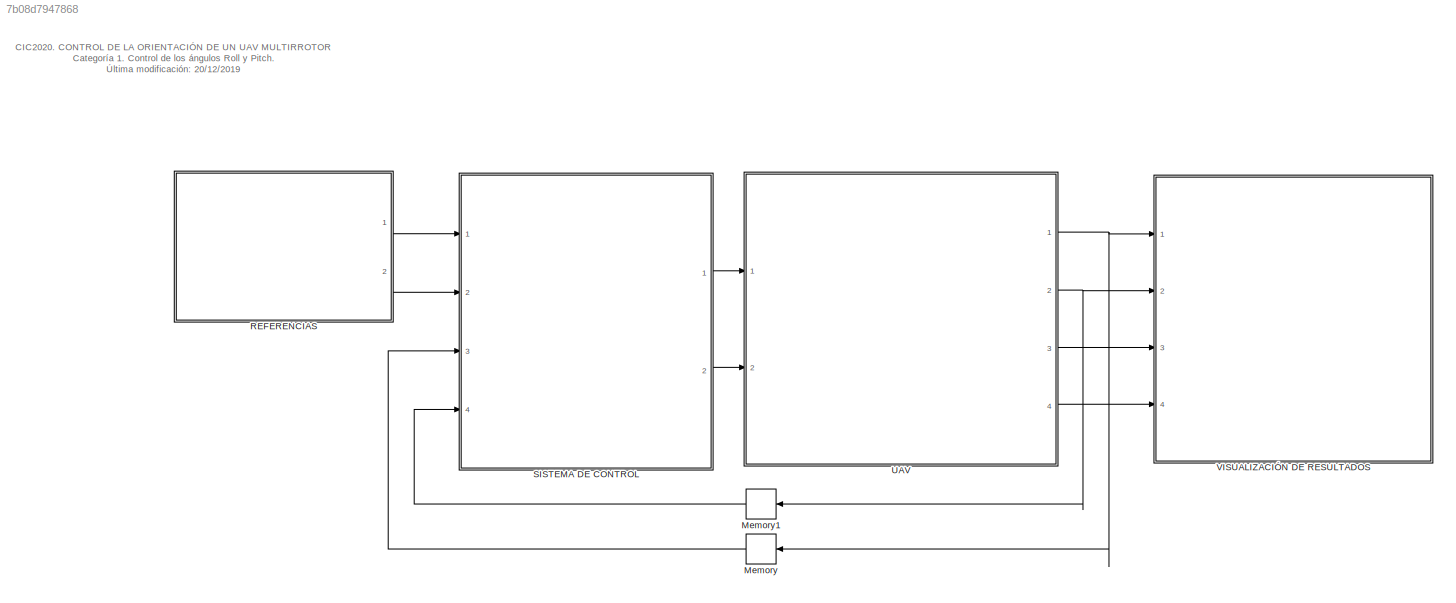
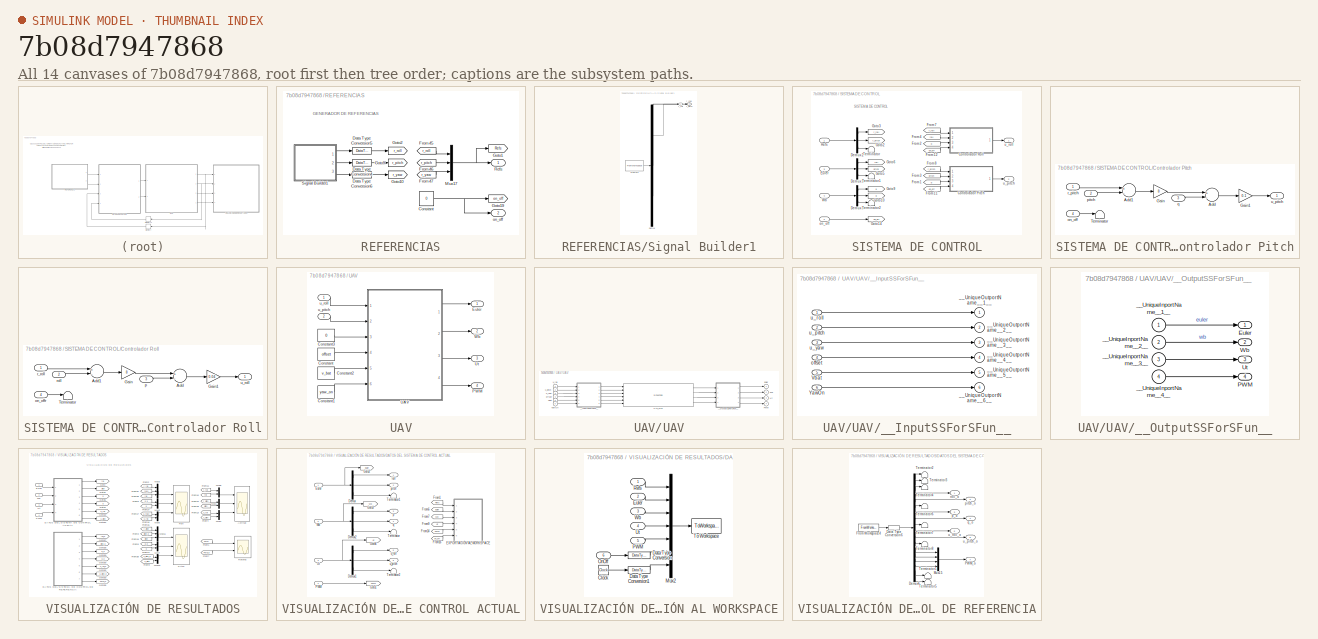
[diagram: thumbnail index - all 14 canvases of the model, root first then tree order]
MODEL slx_7b08d7947868
KIND model
CONFIG AbsTol = auto
CONFIG EnableMultiTasking = off
CONFIG FixedStep = Ts3
CONFIG InitFcn = Ts =0.0200;\nTs3= 0.0100;\nload DatosCrefC1;\n\n
CONFIG MaxStep = Ts3
CONFIG MinStep = auto
CONFIG RelTol = 1e-3
CONFIG SampleTimeConstraint = Unconstrained
CONFIG Solver = FixedStepAuto
CONFIG SolverName = FixedStepAuto
CONFIG StartTime = 0.0
CONFIG StopFcn = clear tf Ts Ts3 tout;
CONFIG StopTime = 45
BLOCK [Memory] Memory
BLOCK [Memory] Memory1
BLOCK [SubSystem] REFERENCIAS
  Ports = [0, 2]
  RequestExecContextInheritance = off
BLOCK [Constant] REFERENCIAS/Constant
  OutDataTypeStr = int16
  Value = 0
BLOCK [DataTypeConversion] REFERENCIAS/Data Type Conversion4
  OutDataTypeStr = single
  RndMeth = Floor
  SaturateOnIntegerOverflow = off
BLOCK [DataTypeConversion] REFERENCIAS/Data Type Conversion5
  OutDataTypeStr = single
  RndMeth = Floor
  SaturateOnIntegerOverflow = off
BLOCK [DataTypeConversion] REFERENCIAS/Data Type Conversion6
  OutDataTypeStr = single
  RndMeth = Floor
  SaturateOnIntegerOverflow = off
BLOCK [From] REFERENCIAS/From45
  GotoTag = r_roll
  TagVisibility = global
BLOCK [From] REFERENCIAS/From46
  GotoTag = r_pitch
  TagVisibility = global
BLOCK [From] REFERENCIAS/From47
  GotoTag = r_yaw
  TagVisibility = global
BLOCK [Goto] REFERENCIAS/Goto1
  GotoTag = Refs
  TagVisibility = global
BLOCK [Goto] REFERENCIAS/Goto10
  GotoTag = r_yaw
  TagVisibility = global
BLOCK [Goto] REFERENCIAS/Goto19
  GotoTag = on_off
  TagVisibility = global
BLOCK [Goto] REFERENCIAS/Goto2
  GotoTag = r_roll
  TagVisibility = global
BLOCK [Goto] REFERENCIAS/Goto9
  GotoTag = r_pitch
  TagVisibility = global
BLOCK [Mux] REFERENCIAS/Mux17
  DisplayOption = bar
  Inputs = 3
  Ports = [3, 1]
BLOCK [Outport] REFERENCIAS/Refs
  IconDisplay = Port number
BLOCK [SubSystem] REFERENCIAS/Signal Builder1
  ClipboardFcn = sigbuilder_block('clipboard');
  CloseFcn = sigbuilder_block('close');
  ContinueFcn = sigbuilder_block('continue');
  CopyFcn = sigbuilder_block('copy');
  DeleteFcn = sigbuilder_block('delete');
  LoadFcn = sigbuilder_block('load');
  MaskHideContents = on
  ModelCloseFcn = sigbuilder_block('modelClose');
  NameChangeFcn = sigbuilder_block('namechange');
  OpenFcn = sigbuilder_block('open',[5.4 5.4 1141.2 580.8 ]);
  PauseFcn = sigbuilder_block('pause');
  Ports = [0, 3]
  PreSaveFcn = sigbuilder_block('preSave');
  RequestExecContextInheritance = off
  StartFcn = sigbuilder_block('start');
  StopFcn = sigbuilder_block('stop');
  Tag = STV Subsys
BLOCK [Demux] REFERENCIAS/Signal Builder1/Demux
  Outputs = 3
  Ports = [1, 3]
  Tag = STV Demux
BLOCK [FromWorkspace] REFERENCIAS/Signal Builder1/FromWs
  SampleTime = 0
  Tag = STV FromWs
  VariableName = tuvar
  ZeroCross = on
BLOCK [Outport] REFERENCIAS/Signal Builder1/r_pitch
  IconDisplay = Port number
  Port = 2
  Tag = STV Outport
BLOCK [Outport] REFERENCIAS/Signal Builder1/r_roll
  IconDisplay = Port number
  Tag = STV Outport
BLOCK [Outport] REFERENCIAS/Signal Builder1/r_yaw
  IconDisplay = Port number
  Port = 3
  Tag = STV Outport
BLOCK [Outport] REFERENCIAS/on_off
  IconDisplay = Port number
  Port = 2
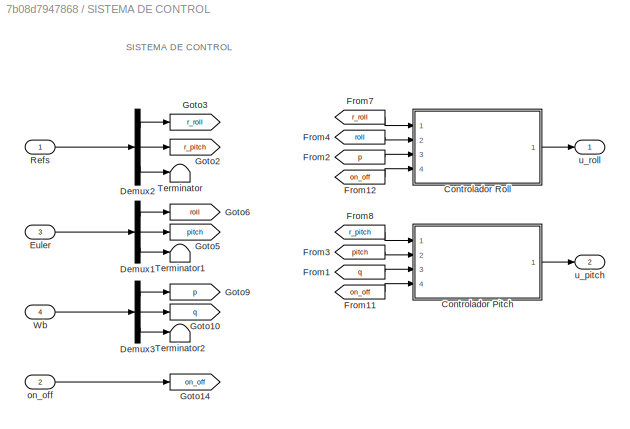
BLOCK [SubSystem] SISTEMA DE CONTROL
  Ports = [4, 2]
  RequestExecContextInheritance = off
BLOCK [SubSystem] SISTEMA DE CONTROL/Controlador Pitch
  Ports = [4, 1]
  RequestExecContextInheritance = off
BLOCK [Sum] SISTEMA DE CONTROL/Controlador Pitch/Add
  InputSameDT = off
  Inputs = +-
  OutDataTypeStr = Inherit: Inherit via internal rule
  Ports = [2, 1]
  SaturateOnIntegerOverflow = off
BLOCK [Sum] SISTEMA DE CONTROL/Controlador Pitch/Add1
  InputSameDT = off
  Inputs = +-
  OutDataTypeStr = Inherit: Inherit via internal rule
  Ports = [2, 1]
  SaturateOnIntegerOverflow = off
BLOCK [Gain] SISTEMA DE CONTROL/Controlador Pitch/Gain
  Gain = 8
  OutDataTypeStr = Inherit: Inherit via internal rule
  ParamDataTypeStr = Inherit: Inherit via internal rule
  SaturateOnIntegerOverflow = off
BLOCK [Gain] SISTEMA DE CONTROL/Controlador Pitch/Gain1
  Gain = 0.1
  OutDataTypeStr = Inherit: Inherit via internal rule
  ParamDataTypeStr = Inherit: Inherit via internal rule
  SaturateOnIntegerOverflow = off
BLOCK [Terminator] SISTEMA DE CONTROL/Controlador Pitch/Terminator
BLOCK [Inport] SISTEMA DE CONTROL/Controlador Pitch/on_off
  IconDisplay = Port number
  Port = 4
BLOCK [Inport] SISTEMA DE CONTROL/Controlador Pitch/pitch
  IconDisplay = Port number
  Port = 2
BLOCK [Inport] SISTEMA DE CONTROL/Controlador Pitch/q
  IconDisplay = Port number
  Port = 3
BLOCK [Inport] SISTEMA DE CONTROL/Controlador Pitch/r_pitch
  IconDisplay = Port number
BLOCK [Outport] SISTEMA DE CONTROL/Controlador Pitch/u_pitch
  IconDisplay = Port number
BLOCK [SubSystem] SISTEMA DE CONTROL/Controlador Roll
  Ports = [4, 1]
  RequestExecContextInheritance = off
BLOCK [Sum] SISTEMA DE CONTROL/Controlador Roll/Add
  InputSameDT = off
  Inputs = +-
  OutDataTypeStr = Inherit: Inherit via internal rule
  Ports = [2, 1]
  SaturateOnIntegerOverflow = off
BLOCK [Sum] SISTEMA DE CONTROL/Controlador Roll/Add1
  InputSameDT = off
  Inputs = +-
  OutDataTypeStr = Inherit: Inherit via internal rule
  Ports = [2, 1]
  SaturateOnIntegerOverflow = off
BLOCK [Gain] SISTEMA DE CONTROL/Controlador Roll/Gain
  Gain = 8
  OutDataTypeStr = Inherit: Inherit via internal rule
  ParamDataTypeStr = Inherit: Inherit via internal rule
  SaturateOnIntegerOverflow = off
BLOCK [Gain] SISTEMA DE CONTROL/Controlador Roll/Gain1
  Gain = 0.04
  OutDataTypeStr = Inherit: Inherit via internal rule
  ParamDataTypeStr = Inherit: Inherit via internal rule
  SaturateOnIntegerOverflow = off
BLOCK [Terminator] SISTEMA DE CONTROL/Controlador Roll/Terminator
BLOCK [Inport] SISTEMA DE CONTROL/Controlador Roll/on_offr
  IconDisplay = Port number
  Port = 4
BLOCK [Inport] SISTEMA DE CONTROL/Controlador Roll/p
  IconDisplay = Port number
  Port = 3
BLOCK [Inport] SISTEMA DE CONTROL/Controlador Roll/r_roll
  IconDisplay = Port number
BLOCK [Inport] SISTEMA DE CONTROL/Controlador Roll/roll
  IconDisplay = Port number
  Port = 2
BLOCK [Outport] SISTEMA DE CONTROL/Controlador Roll/u_roll
  IconDisplay = Port number
BLOCK [Demux] SISTEMA DE CONTROL/Demux1
  DisplayOption = bar
  Outputs = 3
  Ports = [1, 3]
BLOCK [Demux] SISTEMA DE CONTROL/Demux2
  DisplayOption = bar
  Outputs = 3
  Ports = [1, 3]
BLOCK [Demux] SISTEMA DE CONTROL/Demux3
  DisplayOption = bar
  Outputs = 3
  Ports = [1, 3]
BLOCK [Inport] SISTEMA DE CONTROL/Euler
  IconDisplay = Port number
  Port = 3
BLOCK [From] SISTEMA DE CONTROL/From1
  GotoTag = q
BLOCK [From] SISTEMA DE CONTROL/From11
  GotoTag = on_off
BLOCK [From] SISTEMA DE CONTROL/From12
  GotoTag = on_off
BLOCK [From] SISTEMA DE CONTROL/From2
  GotoTag = p
BLOCK [From] SISTEMA DE CONTROL/From3
  GotoTag = pitch
BLOCK [From] SISTEMA DE CONTROL/From4
  GotoTag = roll
BLOCK [From] SISTEMA DE CONTROL/From7
  GotoTag = r_roll
BLOCK [From] SISTEMA DE CONTROL/From8
  GotoTag = r_pitch
BLOCK [Goto] SISTEMA DE CONTROL/Goto10
  GotoTag = q
BLOCK [Goto] SISTEMA DE CONTROL/Goto14
  GotoTag = on_off
BLOCK [Goto] SISTEMA DE CONTROL/Goto2
  GotoTag = r_pitch
BLOCK [Goto] SISTEMA DE CONTROL/Goto3
  GotoTag = r_roll
BLOCK [Goto] SISTEMA DE CONTROL/Goto5
  GotoTag = pitch
BLOCK [Goto] SISTEMA DE CONTROL/Goto6
  GotoTag = roll
BLOCK [Goto] SISTEMA DE CONTROL/Goto9
  GotoTag = p
BLOCK [Inport] SISTEMA DE CONTROL/Refs
  IconDisplay = Port number
BLOCK [Terminator] SISTEMA DE CONTROL/Terminator
BLOCK [Terminator] SISTEMA DE CONTROL/Terminator1
BLOCK [Terminator] SISTEMA DE CONTROL/Terminator2
BLOCK [Inport] SISTEMA DE CONTROL/Wb
  IconDisplay = Port number
  Port = 4
BLOCK [Inport] SISTEMA DE CONTROL/on_off
  IconDisplay = Port number
  Port = 2
BLOCK [Outport] SISTEMA DE CONTROL/u_pitch
  IconDisplay = Port number
  Port = 2
BLOCK [Outport] SISTEMA DE CONTROL/u_roll
  IconDisplay = Port number
BLOCK [SubSystem] UAV
  Ports = [2, 4]
  RequestExecContextInheritance = off
  SystemSampleTime = Ts3
BLOCK [Constant] UAV/Constant
  OutDataTypeStr = int16
  Value = offset
BLOCK [Constant] UAV/Constant1
  Value = yaw_on
BLOCK [Constant] UAV/Constant2
  Value = v_bat
BLOCK [Constant] UAV/Constant3
  OutDataTypeStr = single
  Value = 0
BLOCK [Outport] UAV/Euler
  IconDisplay = Port number
BLOCK [Outport] UAV/PWM
  IconDisplay = Port number
  Port = 4
BLOCK [SubSystem] UAV/UAV
  Ports = [6, 4]
  RequestExecContextInheritance = off
BLOCK [Outport] UAV/UAV/Euler
  IconDisplay = Port number
BLOCK [Outport] UAV/UAV/PWM
  IconDisplay = Port number
  Port = 4
BLOCK [S-Function] UAV/UAV/UAV_sfcn
  CopyFcn = if ~strcmp(get_param(gcb,'Linkstatus'),'none') && ...\n~strcmp(get_param(gcb,'Linkstatus'),'implicit')      \n  set_param(gcb,'LinkStatus','none');                \nend
  EnableBusSupport = off
  FunctionName = UAV_sf
  Ports = [6, 4]
  SFcnIsStateOwnerBlock = off
  SFunctionDeploymentMode = off
BLOCK [Outport] UAV/UAV/Ut
  IconDisplay = Port number
  Port = 3
BLOCK [Inport] UAV/UAV/Vbat
  IconDisplay = Port number
  Port = 5
BLOCK [Outport] UAV/UAV/Wb
  IconDisplay = Port number
  Port = 2
BLOCK [Inport] UAV/UAV/YawOn
  IconDisplay = Port number
  Port = 6
BLOCK [SubSystem] UAV/UAV/__InputSSForSFun__
  PermitHierarchicalResolution = ExplicitOnly
  Ports = [6, 6]
  RequestExecContextInheritance = off
BLOCK [Inport] UAV/UAV/__InputSSForSFun__/Vbat
  IconDisplay = Port number
  Port = 5
BLOCK [Inport] UAV/UAV/__InputSSForSFun__/YawOn
  IconDisplay = Port number
  Port = 6
BLOCK [Outport] UAV/UAV/__InputSSForSFun__/__UniqueOutportName__1__
  IconDisplay = Port number
BLOCK [Outport] UAV/UAV/__InputSSForSFun__/__UniqueOutportName__2__
  IconDisplay = Port number
  Port = 2
BLOCK [Outport] UAV/UAV/__InputSSForSFun__/__UniqueOutportName__3__
  IconDisplay = Port number
  Port = 3
BLOCK [Outport] UAV/UAV/__InputSSForSFun__/__UniqueOutportName__4__
  IconDisplay = Port number
  Port = 4
BLOCK [Outport] UAV/UAV/__InputSSForSFun__/__UniqueOutportName__5__
  IconDisplay = Port number
  Port = 5
BLOCK [Outport] UAV/UAV/__InputSSForSFun__/__UniqueOutportName__6__
  IconDisplay = Port number
  Port = 6
BLOCK [Inport] UAV/UAV/__InputSSForSFun__/offset
  IconDisplay = Port number
  Port = 4
BLOCK [Inport] UAV/UAV/__InputSSForSFun__/u_pitch
  IconDisplay = Port number
  Port = 2
BLOCK [Inport] UAV/UAV/__InputSSForSFun__/u_roll
  IconDisplay = Port number
BLOCK [Inport] UAV/UAV/__InputSSForSFun__/u_yaw
  IconDisplay = Port number
  Port = 3
BLOCK [SubSystem] UAV/UAV/__OutputSSForSFun__
  PermitHierarchicalResolution = ExplicitOnly
  Ports = [4, 4]
  RequestExecContextInheritance = off
BLOCK [Outport] UAV/UAV/__OutputSSForSFun__/Euler
  IconDisplay = Port number
BLOCK [Outport] UAV/UAV/__OutputSSForSFun__/PWM
  IconDisplay = Port number
  Port = 4
BLOCK [Outport] UAV/UAV/__OutputSSForSFun__/Ut
  IconDisplay = Port number
  Port = 3
BLOCK [Outport] UAV/UAV/__OutputSSForSFun__/Wb
  IconDisplay = Port number
  Port = 2
BLOCK [Inport] UAV/UAV/__OutputSSForSFun__/__UniqueInportName__1__
  IconDisplay = Port number
BLOCK [Inport] UAV/UAV/__OutputSSForSFun__/__UniqueInportName__2__
  IconDisplay = Port number
  Port = 2
BLOCK [Inport] UAV/UAV/__OutputSSForSFun__/__UniqueInportName__3__
  IconDisplay = Port number
  Port = 3
BLOCK [Inport] UAV/UAV/__OutputSSForSFun__/__UniqueInportName__4__
  IconDisplay = Port number
  Port = 4
BLOCK [Inport] UAV/UAV/offset
  IconDisplay = Port number
  Port = 4
BLOCK [Inport] UAV/UAV/u_pitch
  IconDisplay = Port number
  Port = 2
BLOCK [Inport] UAV/UAV/u_roll
  IconDisplay = Port number
BLOCK [Inport] UAV/UAV/u_yaw
  IconDisplay = Port number
  Port = 3
BLOCK [Outport] UAV/Ut
  IconDisplay = Port number
  Port = 3
BLOCK [Outport] UAV/Wb
  IconDisplay = Port number
  Port = 2
BLOCK [Inport] UAV/u_pitch
  IconDisplay = Port number
  Port = 2
BLOCK [Inport] UAV/u_roll
  IconDisplay = Port number
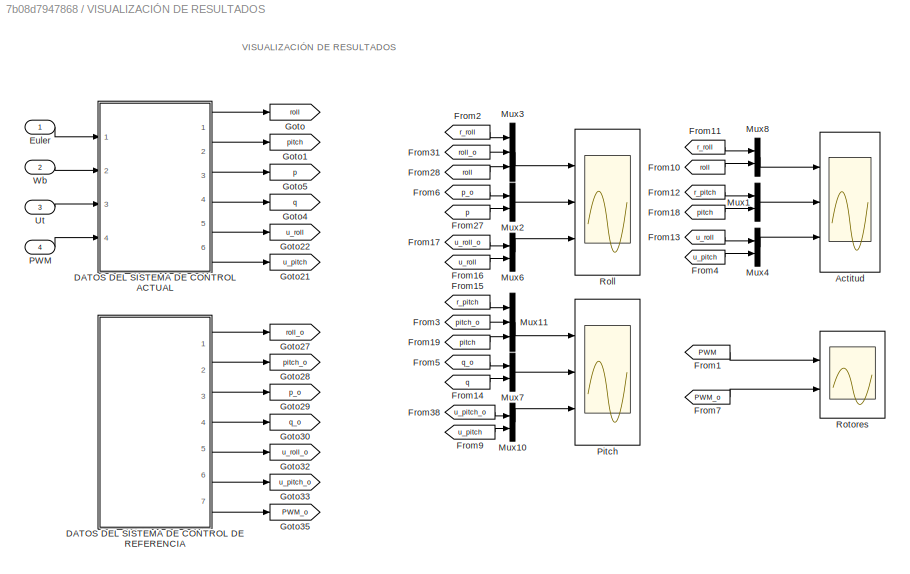
BLOCK [SubSystem] VISUALIZACIÓN DE RESULTADOS
  Ports = [4]
  RequestExecContextInheritance = off
BLOCK [Scope] VISUALIZACIÓN DE RESULTADOS/Actitud
  Floating = off
  NumInputPorts = 3
  Ports = [3]
  ScopeSpecificationString = Simulink.scopes.TimeScopeBlockCfg('CurrentConfiguration', extmgr.ConfigurationSet(extmgr.Configuration('Core','General UI',true),extmgr.Configuration('Core','Source UI',true),extmgr.Configuration('Sources','WiredSimulink',true,'DataLoggingVariableName','ScopeData1','SampleTime','Ts'),extmgr.Configuration('Visuals','Time Domain',true,'SerializedDisplays',{struct('MinYLimReal','-261.41696','MaxYLimR...<+3969ch>
BLOCK [SubSystem] VISUALIZACIÓN DE RESULTADOS/DATOS DEL SISTEMA DE CONTROL ACTUAL
  Ports = [4, 6]
  RequestExecContextInheritance = off
BLOCK [Demux] VISUALIZACIÓN DE RESULTADOS/DATOS DEL SISTEMA DE CONTROL ACTUAL/Demux
  DisplayOption = bar
  Outputs = 3
  Ports = [1, 3]
BLOCK [Demux] VISUALIZACIÓN DE RESULTADOS/DATOS DEL SISTEMA DE CONTROL ACTUAL/Demux1
  DisplayOption = bar
  Outputs = 3
  Ports = [1, 3]
BLOCK [Demux] VISUALIZACIÓN DE RESULTADOS/DATOS DEL SISTEMA DE CONTROL ACTUAL/Demux2
  DisplayOption = bar
  Outputs = 3
  Ports = [1, 3]
BLOCK [SubSystem] VISUALIZACIÓN DE RESULTADOS/DATOS DEL SISTEMA DE CONTROL ACTUAL/EXPORTACIÓN AL WORKSPACE
  Ports = [6]
  RequestExecContextInheritance = off
BLOCK [Clock] VISUALIZACIÓN DE RESULTADOS/DATOS DEL SISTEMA DE CONTROL ACTUAL/EXPORTACIÓN AL WORKSPACE/Clock
  Decimation = 1
BLOCK [DataTypeConversion] VISUALIZACIÓN DE RESULTADOS/DATOS DEL SISTEMA DE CONTROL ACTUAL/EXPORTACIÓN AL WORKSPACE/Data Type Conversion
  OutDataTypeStr = single
  RndMeth = Floor
  SaturateOnIntegerOverflow = off
BLOCK [DataTypeConversion] VISUALIZACIÓN DE RESULTADOS/DATOS DEL SISTEMA DE CONTROL ACTUAL/EXPORTACIÓN AL WORKSPACE/Data Type Conversion1
  OutDataTypeStr = single
  RndMeth = Floor
  SaturateOnIntegerOverflow = off
BLOCK [Inport] VISUALIZACIÓN DE RESULTADOS/DATOS DEL SISTEMA DE CONTROL ACTUAL/EXPORTACIÓN AL WORKSPACE/Euler
  IconDisplay = Port number
  Port = 2
BLOCK [Mux] VISUALIZACIÓN DE RESULTADOS/DATOS DEL SISTEMA DE CONTROL ACTUAL/EXPORTACIÓN AL WORKSPACE/Mux2
  DisplayOption = bar
  Inputs = 7
  Ports = [7, 1]
BLOCK [Inport] VISUALIZACIÓN DE RESULTADOS/DATOS DEL SISTEMA DE CONTROL ACTUAL/EXPORTACIÓN AL WORKSPACE/OnOff
  IconDisplay = Port number
  Port = 6
BLOCK [Inport] VISUALIZACIÓN DE RESULTADOS/DATOS DEL SISTEMA DE CONTROL ACTUAL/EXPORTACIÓN AL WORKSPACE/PWM
  IconDisplay = Port number
  Port = 5
BLOCK [Inport] VISUALIZACIÓN DE RESULTADOS/DATOS DEL SISTEMA DE CONTROL ACTUAL/EXPORTACIÓN AL WORKSPACE/Refs
  IconDisplay = Port number
BLOCK [ToWorkspace] VISUALIZACIÓN DE RESULTADOS/DATOS DEL SISTEMA DE CONTROL ACTUAL/EXPORTACIÓN AL WORKSPACE/To Workspace
  Decimation = 2
  FixptAsFi = on
  MaxDataPoints = inf
  Ports = [1]
  SampleTime = -1
  Save2DSignal = 3-D array (concatenate along third dimension)
  SaveFormat = Structure With Time
  VariableName = DatosC1
BLOCK [Inport] VISUALIZACIÓN DE RESULTADOS/DATOS DEL SISTEMA DE CONTROL ACTUAL/EXPORTACIÓN AL WORKSPACE/Ut
  IconDisplay = Port number
  Port = 4
BLOCK [Inport] VISUALIZACIÓN DE RESULTADOS/DATOS DEL SISTEMA DE CONTROL ACTUAL/EXPORTACIÓN AL WORKSPACE/Wb
  IconDisplay = Port number
  Port = 3
BLOCK [Inport] VISUALIZACIÓN DE RESULTADOS/DATOS DEL SISTEMA DE CONTROL ACTUAL/Euler
  IconDisplay = Port number
BLOCK [From] VISUALIZACIÓN DE RESULTADOS/DATOS DEL SISTEMA DE CONTROL ACTUAL/From1
  GotoTag = Refs
  TagVisibility = global
BLOCK [From] VISUALIZACIÓN DE RESULTADOS/DATOS DEL SISTEMA DE CONTROL ACTUAL/From14
  GotoTag = PWM
  TagVisibility = global
BLOCK [From] VISUALIZACIÓN DE RESULTADOS/DATOS DEL SISTEMA DE CONTROL ACTUAL/From16
  GotoTag = on_off
  TagVisibility = global
BLOCK [From] VISUALIZACIÓN DE RESULTADOS/DATOS DEL SISTEMA DE CONTROL ACTUAL/From6
  GotoTag = Euler
BLOCK [From] VISUALIZACIÓN DE RESULTADOS/DATOS DEL SISTEMA DE CONTROL ACTUAL/From7
  GotoTag = Wb
BLOCK [From] VISUALIZACIÓN DE RESULTADOS/DATOS DEL SISTEMA DE CONTROL ACTUAL/From9
  GotoTag = Ut
BLOCK [Goto] VISUALIZACIÓN DE RESULTADOS/DATOS DEL SISTEMA DE CONTROL ACTUAL/Goto1
  GotoTag = PWM
  TagVisibility = global
BLOCK [Goto] VISUALIZACIÓN DE RESULTADOS/DATOS DEL SISTEMA DE CONTROL ACTUAL/Goto2
  GotoTag = Euler
BLOCK [Goto] VISUALIZACIÓN DE RESULTADOS/DATOS DEL SISTEMA DE CONTROL ACTUAL/Goto3
  GotoTag = Wb
BLOCK [Goto] VISUALIZACIÓN DE RESULTADOS/DATOS DEL SISTEMA DE CONTROL ACTUAL/Goto6
  GotoTag = Ut
BLOCK [Inport] VISUALIZACIÓN DE RESULTADOS/DATOS DEL SISTEMA DE CONTROL ACTUAL/PWM
  IconDisplay = Port number
  Port = 4
BLOCK [Terminator] VISUALIZACIÓN DE RESULTADOS/DATOS DEL SISTEMA DE CONTROL ACTUAL/Terminator
BLOCK [Terminator] VISUALIZACIÓN DE RESULTADOS/DATOS DEL SISTEMA DE CONTROL ACTUAL/Terminator1
BLOCK [Terminator] VISUALIZACIÓN DE RESULTADOS/DATOS DEL SISTEMA DE CONTROL ACTUAL/Terminator2
BLOCK [Inport] VISUALIZACIÓN DE RESULTADOS/DATOS DEL SISTEMA DE CONTROL ACTUAL/Ut
  IconDisplay = Port number
  Port = 3
BLOCK [Inport] VISUALIZACIÓN DE RESULTADOS/DATOS DEL SISTEMA DE CONTROL ACTUAL/Wb
  IconDisplay = Port number
  Port = 2
BLOCK [Outport] VISUALIZACIÓN DE RESULTADOS/DATOS DEL SISTEMA DE CONTROL ACTUAL/p
  IconDisplay = Port number
  Port = 3
BLOCK [Outport] VISUALIZACIÓN DE RESULTADOS/DATOS DEL SISTEMA DE CONTROL ACTUAL/pitch
  IconDisplay = Port number
  Port = 2
BLOCK [Outport] VISUALIZACIÓN DE RESULTADOS/DATOS DEL SISTEMA DE CONTROL ACTUAL/q
  IconDisplay = Port number
  Port = 4
BLOCK [Outport] VISUALIZACIÓN DE RESULTADOS/DATOS DEL SISTEMA DE CONTROL ACTUAL/roll
  IconDisplay = Port number
BLOCK [Outport] VISUALIZACIÓN DE RESULTADOS/DATOS DEL SISTEMA DE CONTROL ACTUAL/u_pitch
  IconDisplay = Port number
  Port = 6
BLOCK [Outport] VISUALIZACIÓN DE RESULTADOS/DATOS DEL SISTEMA DE CONTROL ACTUAL/u_roll
  IconDisplay = Port number
  Port = 5
BLOCK [SubSystem] VISUALIZACIÓN DE RESULTADOS/DATOS DEL SISTEMA DE CONTROL DE REFERENCIA
  Ports = [0, 7]
  RequestExecContextInheritance = off
BLOCK [DataTypeConversion] VISUALIZACIÓN DE RESULTADOS/DATOS DEL SISTEMA DE CONTROL DE REFERENCIA/Data Type Conversion6
  OutDataTypeStr = single
  RndMeth = Floor
  SaturateOnIntegerOverflow = off
BLOCK [Demux] VISUALIZACIÓN DE RESULTADOS/DATOS DEL SISTEMA DE CONTROL DE REFERENCIA/Demux6
  DisplayOption = bar
  Outputs = 18
  Ports = [1, 18]
BLOCK [FromWorkspace] VISUALIZACIÓN DE RESULTADOS/DATOS DEL SISTEMA DE CONTROL DE REFERENCIA/From Workspace4
  SampleTime = 0
  VariableName = DatosCrefC1
  ZeroCross = on
BLOCK [Mux] VISUALIZACIÓN DE RESULTADOS/DATOS DEL SISTEMA DE CONTROL DE REFERENCIA/Mux15
  DisplayOption = bar
  Ports = [4, 1]
BLOCK [Outport] VISUALIZACIÓN DE RESULTADOS/DATOS DEL SISTEMA DE CONTROL DE REFERENCIA/PWM_o
  IconDisplay = Port number
  Port = 7
BLOCK [Terminator] VISUALIZACIÓN DE RESULTADOS/DATOS DEL SISTEMA DE CONTROL DE REFERENCIA/Terminator1
BLOCK [Terminator] VISUALIZACIÓN DE RESULTADOS/DATOS DEL SISTEMA DE CONTROL DE REFERENCIA/Terminator2
BLOCK [Terminator] VISUALIZACIÓN DE RESULTADOS/DATOS DEL SISTEMA DE CONTROL DE REFERENCIA/Terminator3
BLOCK [Terminator] VISUALIZACIÓN DE RESULTADOS/DATOS DEL SISTEMA DE CONTROL DE REFERENCIA/Terminator4
BLOCK [Terminator] VISUALIZACIÓN DE RESULTADOS/DATOS DEL SISTEMA DE CONTROL DE REFERENCIA/Terminator5
BLOCK [Terminator] VISUALIZACIÓN DE RESULTADOS/DATOS DEL SISTEMA DE CONTROL DE REFERENCIA/Terminator6
BLOCK [Terminator] VISUALIZACIÓN DE RESULTADOS/DATOS DEL SISTEMA DE CONTROL DE REFERENCIA/Terminator7
BLOCK [Terminator] VISUALIZACIÓN DE RESULTADOS/DATOS DEL SISTEMA DE CONTROL DE REFERENCIA/Terminator8
BLOCK [Outport] VISUALIZACIÓN DE RESULTADOS/DATOS DEL SISTEMA DE CONTROL DE REFERENCIA/p_o
  IconDisplay = Port number
  Port = 3
BLOCK [Outport] VISUALIZACIÓN DE RESULTADOS/DATOS DEL SISTEMA DE CONTROL DE REFERENCIA/pitch_o
  IconDisplay = Port number
  Port = 2
BLOCK [Outport] VISUALIZACIÓN DE RESULTADOS/DATOS DEL SISTEMA DE CONTROL DE REFERENCIA/q_o
  IconDisplay = Port number
  Port = 4
BLOCK [Outport] VISUALIZACIÓN DE RESULTADOS/DATOS DEL SISTEMA DE CONTROL DE REFERENCIA/roll_o
  IconDisplay = Port number
BLOCK [Outport] VISUALIZACIÓN DE RESULTADOS/DATOS DEL SISTEMA DE CONTROL DE REFERENCIA/u_pitch_o
  IconDisplay = Port number
  Port = 6
BLOCK [Outport] VISUALIZACIÓN DE RESULTADOS/DATOS DEL SISTEMA DE CONTROL DE REFERENCIA/u_roll_o
  IconDisplay = Port number
  Port = 5
BLOCK [Inport] VISUALIZACIÓN DE RESULTADOS/Euler
  IconDisplay = Port number
BLOCK [From] VISUALIZACIÓN DE RESULTADOS/From1
  GotoTag = PWM
  TagVisibility = global
BLOCK [From] VISUALIZACIÓN DE RESULTADOS/From10
  GotoTag = roll
BLOCK [From] VISUALIZACIÓN DE RESULTADOS/From11
  GotoTag = r_roll
  TagVisibility = global
BLOCK [From] VISUALIZACIÓN DE RESULTADOS/From12
  GotoTag = r_pitch
  TagVisibility = global
BLOCK [From] VISUALIZACIÓN DE RESULTADOS/From13
  GotoTag = u_roll
BLOCK [From] VISUALIZACIÓN DE RESULTADOS/From14
  GotoTag = q
BLOCK [From] VISUALIZACIÓN DE RESULTADOS/From15
  GotoTag = r_pitch
  TagVisibility = global
BLOCK [From] VISUALIZACIÓN DE RESULTADOS/From16
  GotoTag = u_roll
BLOCK [From] VISUALIZACIÓN DE RESULTADOS/From17
  GotoTag = u_roll_o
BLOCK [From] VISUALIZACIÓN DE RESULTADOS/From18
  GotoTag = pitch
BLOCK [From] VISUALIZACIÓN DE RESULTADOS/From19
  GotoTag = pitch
BLOCK [From] VISUALIZACIÓN DE RESULTADOS/From2
  GotoTag = r_roll
  TagVisibility = global
BLOCK [From] VISUALIZACIÓN DE RESULTADOS/From27
  GotoTag = p
BLOCK [From] VISUALIZACIÓN DE RESULTADOS/From28
  GotoTag = roll
BLOCK [From] VISUALIZACIÓN DE RESULTADOS/From3
  GotoTag = pitch_o
BLOCK [From] VISUALIZACIÓN DE RESULTADOS/From31
  GotoTag = roll_o
BLOCK [From] VISUALIZACIÓN DE RESULTADOS/From38
  GotoTag = u_pitch_o
BLOCK [From] VISUALIZACIÓN DE RESULTADOS/From4
  GotoTag = u_pitch
BLOCK [From] VISUALIZACIÓN DE RESULTADOS/From5
  GotoTag = q_o
BLOCK [From] VISUALIZACIÓN DE RESULTADOS/From6
  GotoTag = p_o
BLOCK [From] VISUALIZACIÓN DE RESULTADOS/From7
  GotoTag = PWM_o
BLOCK [From] VISUALIZACIÓN DE RESULTADOS/From9
  GotoTag = u_pitch
BLOCK [Goto] VISUALIZACIÓN DE RESULTADOS/Goto
  GotoTag = roll
BLOCK [Goto] VISUALIZACIÓN DE RESULTADOS/Goto1
  GotoTag = pitch
BLOCK [Goto] VISUALIZACIÓN DE RESULTADOS/Goto21
  GotoTag = u_pitch
BLOCK [Goto] VISUALIZACIÓN DE RESULTADOS/Goto22
  GotoTag = u_roll
BLOCK [Goto] VISUALIZACIÓN DE RESULTADOS/Goto27
  GotoTag = roll_o
BLOCK [Goto] VISUALIZACIÓN DE RESULTADOS/Goto28
  GotoTag = pitch_o
BLOCK [Goto] VISUALIZACIÓN DE RESULTADOS/Goto29
  GotoTag = p_o
BLOCK [Goto] VISUALIZACIÓN DE RESULTADOS/Goto30
  GotoTag = q_o
BLOCK [Goto] VISUALIZACIÓN DE RESULTADOS/Goto32
  GotoTag = u_roll_o
BLOCK [Goto] VISUALIZACIÓN DE RESULTADOS/Goto33
  GotoTag = u_pitch_o
BLOCK [Goto] VISUALIZACIÓN DE RESULTADOS/Goto35
  GotoTag = PWM_o
BLOCK [Goto] VISUALIZACIÓN DE RESULTADOS/Goto4
  GotoTag = q
BLOCK [Goto] VISUALIZACIÓN DE RESULTADOS/Goto5
  GotoTag = p
BLOCK [Mux] VISUALIZACIÓN DE RESULTADOS/Mux1
  DisplayOption = bar
  Inputs = 2
  Ports = [2, 1]
BLOCK [Mux] VISUALIZACIÓN DE RESULTADOS/Mux10
  DisplayOption = bar
  Inputs = 2
  Ports = [2, 1]
BLOCK [Mux] VISUALIZACIÓN DE RESULTADOS/Mux11
  DisplayOption = bar
  Inputs = 3
  Ports = [3, 1]
BLOCK [Mux] VISUALIZACIÓN DE RESULTADOS/Mux2
  DisplayOption = bar
  Inputs = 2
  Ports = [2, 1]
BLOCK [Mux] VISUALIZACIÓN DE RESULTADOS/Mux3
  DisplayOption = bar
  Inputs = 3
  Ports = [3, 1]
BLOCK [Mux] VISUALIZACIÓN DE RESULTADOS/Mux4
  DisplayOption = bar
  Inputs = 2
  Ports = [2, 1]
BLOCK [Mux] VISUALIZACIÓN DE RESULTADOS/Mux6
  DisplayOption = bar
  Inputs = 2
  Ports = [2, 1]
BLOCK [Mux] VISUALIZACIÓN DE RESULTADOS/Mux7
  DisplayOption = bar
  Inputs = 2
  Ports = [2, 1]
BLOCK [Mux] VISUALIZACIÓN DE RESULTADOS/Mux8
  DisplayOption = bar
  Inputs = 2
  Ports = [2, 1]
BLOCK [Inport] VISUALIZACIÓN DE RESULTADOS/PWM
  IconDisplay = Port number
  Port = 4
BLOCK [Scope] VISUALIZACIÓN DE RESULTADOS/Pitch
  Floating = off
  NumInputPorts = 3
  Ports = [3]
  ScopeSpecificationString = Simulink.scopes.TimeScopeBlockCfg('CurrentConfiguration', extmgr.ConfigurationSet(extmgr.Configuration('Core','General UI',true),extmgr.Configuration('Core','Source UI',true),extmgr.Configuration('Sources','WiredSimulink',true,'DataLoggingVariableName','ScopeData1','SampleTime','Ts'),extmgr.Configuration('Visuals','Time Domain',true,'SerializedDisplays',{struct('MinYLimReal','-284.59382','MaxYLimR...<+4307ch>
BLOCK [Scope] VISUALIZACIÓN DE RESULTADOS/Roll
  Floating = off
  NumInputPorts = 3
  Ports = [3]
  ScopeSpecificationString = Simulink.scopes.TimeScopeBlockCfg('CurrentConfiguration', extmgr.ConfigurationSet(extmgr.Configuration('Core','General UI',true,'FigureColor',[0 0 0]),extmgr.Configuration('Core','Source UI',true),extmgr.Configuration('Sources','WiredSimulink',true,'DataLoggingVariableName','ScopeData2','SampleTime','Ts'),extmgr.Configuration('Visuals','Time Domain',true,'SerializedDisplays',{struct('MinYLimReal',...<+4328ch>
BLOCK [Scope] VISUALIZACIÓN DE RESULTADOS/Rotores
  Floating = off
  NumInputPorts = 2
  Ports = [2]
  ScopeSpecificationString = Simulink.scopes.TimeScopeBlockCfg('CurrentConfiguration', extmgr.ConfigurationSet(extmgr.Configuration('Core','General UI',true),extmgr.Configuration('Core','Source UI',true),extmgr.Configuration('Sources','WiredSimulink',true,'DataLoggingVariableName','ScopeData2','SampleTime','Ts'),extmgr.Configuration('Visuals','Time Domain',true,'SerializedDisplays',{struct('MinYLimReal','894.48872','MaxYLimRe...<+3192ch>
BLOCK [Inport] VISUALIZACIÓN DE RESULTADOS/Ut
  IconDisplay = Port number
  Port = 3
BLOCK [Inport] VISUALIZACIÓN DE RESULTADOS/Wb
  IconDisplay = Port number
  Port = 2
ANNOTATION (root): CIC2020. CONTROL DE LA ORIENTACIÓN DE UN UAV MULTIRROTOR Categoría 1. Control de los ángulos Roll y Pitch. Última modificación: 20/12/2019
ANNOTATION REFERENCIAS: GENERADOR DE REFERENCIAS
ANNOTATION SISTEMA DE CONTROL: SISTEMA DE CONTROL
ANNOTATION VISUALIZACIÓN DE RESULTADOS: VISUALIZACIÓN DE RESULTADOS
LINE Memory1:1 -> SISTEMA DE CONTROL:4
LINE Memory:1 -> SISTEMA DE CONTROL:3
NET REFERENCIAS/Constant:1 -> REFERENCIAS/Goto19:1, REFERENCIAS/on_off:1
LINE REFERENCIAS/Data Type Conversion4:1 -> REFERENCIAS/Goto9:1
LINE REFERENCIAS/Data Type Conversion5:1 -> REFERENCIAS/Goto2:1
LINE REFERENCIAS/Data Type Conversion6:1 -> REFERENCIAS/Goto10:1
LINE REFERENCIAS/From45:1 -> REFERENCIAS/Mux17:1
LINE REFERENCIAS/From46:1 -> REFERENCIAS/Mux17:2
LINE REFERENCIAS/From47:1 -> REFERENCIAS/Mux17:3
NET REFERENCIAS/Mux17:1 -> REFERENCIAS/Goto1:1, REFERENCIAS/Refs:1
LINE REFERENCIAS/Signal Builder1:1 -> REFERENCIAS/Data Type Conversion5:1
LINE REFERENCIAS/Signal Builder1:2 -> REFERENCIAS/Data Type Conversion4:1
LINE REFERENCIAS/Signal Builder1:3 -> REFERENCIAS/Data Type Conversion6:1
LINE REFERENCIAS:1 -> SISTEMA DE CONTROL:1
LINE REFERENCIAS:2 -> SISTEMA DE CONTROL:2
LINE SISTEMA DE CONTROL/Controlador Pitch/Add1:1 -> SISTEMA DE CONTROL/Controlador Pitch/Gain:1
LINE SISTEMA DE CONTROL/Controlador Pitch/Add:1 -> SISTEMA DE CONTROL/Controlador Pitch/Gain1:1
LINE SISTEMA DE CONTROL/Controlador Pitch/Gain1:1 -> SISTEMA DE CONTROL/Controlador Pitch/u_pitch:1
LINE SISTEMA DE CONTROL/Controlador Pitch/Gain:1 -> SISTEMA DE CONTROL/Controlador Pitch/Add:1
LINE SISTEMA DE CONTROL/Controlador Pitch/on_off:1 -> SISTEMA DE CONTROL/Controlador Pitch/Terminator:1
LINE SISTEMA DE CONTROL/Controlador Pitch/pitch:1 -> SISTEMA DE CONTROL/Controlador Pitch/Add1:2
LINE SISTEMA DE CONTROL/Controlador Pitch/q:1 -> SISTEMA DE CONTROL/Controlador Pitch/Add:2
LINE SISTEMA DE CONTROL/Controlador Pitch/r_pitch:1 -> SISTEMA DE CONTROL/Controlador Pitch/Add1:1
LINE SISTEMA DE CONTROL/Controlador Pitch:1 -> SISTEMA DE CONTROL/u_pitch:1
LINE SISTEMA DE CONTROL/Controlador Roll/Add1:1 -> SISTEMA DE CONTROL/Controlador Roll/Gain:1
LINE SISTEMA DE CONTROL/Controlador Roll/Add:1 -> SISTEMA DE CONTROL/Controlador Roll/Gain1:1
LINE SISTEMA DE CONTROL/Controlador Roll/Gain1:1 -> SISTEMA DE CONTROL/Controlador Roll/u_roll:1
LINE SISTEMA DE CONTROL/Controlador Roll/Gain:1 -> SISTEMA DE CONTROL/Controlador Roll/Add:1
LINE SISTEMA DE CONTROL/Controlador Roll/on_offr:1 -> SISTEMA DE CONTROL/Controlador Roll/Terminator:1
LINE SISTEMA DE CONTROL/Controlador Roll/p:1 -> SISTEMA DE CONTROL/Controlador Roll/Add:2
LINE SISTEMA DE CONTROL/Controlador Roll/r_roll:1 -> SISTEMA DE CONTROL/Controlador Roll/Add1:1
LINE SISTEMA DE CONTROL/Controlador Roll/roll:1 -> SISTEMA DE CONTROL/Controlador Roll/Add1:2
LINE SISTEMA DE CONTROL/Controlador Roll:1 -> SISTEMA DE CONTROL/u_roll:1
LINE SISTEMA DE CONTROL/Demux1:1 -> SISTEMA DE CONTROL/Goto6:1
LINE SISTEMA DE CONTROL/Demux1:2 -> SISTEMA DE CONTROL/Goto5:1
LINE SISTEMA DE CONTROL/Demux1:3 -> SISTEMA DE CONTROL/Terminator1:1
LINE SISTEMA DE CONTROL/Demux2:1 -> SISTEMA DE CONTROL/Goto3:1
LINE SISTEMA DE CONTROL/Demux2:2 -> SISTEMA DE CONTROL/Goto2:1
LINE SISTEMA DE CONTROL/Demux2:3 -> SISTEMA DE CONTROL/Terminator:1
LINE SISTEMA DE CONTROL/Demux3:1 -> SISTEMA DE CONTROL/Goto9:1
LINE SISTEMA DE CONTROL/Demux3:2 -> SISTEMA DE CONTROL/Goto10:1
LINE SISTEMA DE CONTROL/Demux3:3 -> SISTEMA DE CONTROL/Terminator2:1
LINE SISTEMA DE CONTROL/Euler:1 -> SISTEMA DE CONTROL/Demux1:1
LINE SISTEMA DE CONTROL/From11:1 -> SISTEMA DE CONTROL/Controlador Pitch:4
LINE SISTEMA DE CONTROL/From12:1 -> SISTEMA DE CONTROL/Controlador Roll:4
LINE SISTEMA DE CONTROL/From1:1 -> SISTEMA DE CONTROL/Controlador Pitch:3
LINE SISTEMA DE CONTROL/From2:1 -> SISTEMA DE CONTROL/Controlador Roll:3
LINE SISTEMA DE CONTROL/From3:1 -> SISTEMA DE CONTROL/Controlador Pitch:2
LINE SISTEMA DE CONTROL/From4:1 -> SISTEMA DE CONTROL/Controlador Roll:2
LINE SISTEMA DE CONTROL/From7:1 -> SISTEMA DE CONTROL/Controlador Roll:1
LINE SISTEMA DE CONTROL/From8:1 -> SISTEMA DE CONTROL/Controlador Pitch:1
LINE SISTEMA DE CONTROL/Refs:1 -> SISTEMA DE CONTROL/Demux2:1
LINE SISTEMA DE CONTROL/Wb:1 -> SISTEMA DE CONTROL/Demux3:1
LINE SISTEMA DE CONTROL/on_off:1 -> SISTEMA DE CONTROL/Goto14:1
LINE SISTEMA DE CONTROL:1 -> UAV:1
LINE SISTEMA DE CONTROL:2 -> UAV:2
LINE UAV/Constant1:1 -> UAV/UAV:6
LINE UAV/Constant2:1 -> UAV/UAV:5
LINE UAV/Constant3:1 -> UAV/UAV:3
LINE UAV/Constant:1 -> UAV/UAV:4
LINE UAV/UAV/UAV_sfcn:1 -> UAV/UAV/__OutputSSForSFun__:1
LINE UAV/UAV/UAV_sfcn:2 -> UAV/UAV/__OutputSSForSFun__:2
LINE UAV/UAV/UAV_sfcn:3 -> UAV/UAV/__OutputSSForSFun__:3
LINE UAV/UAV/UAV_sfcn:4 -> UAV/UAV/__OutputSSForSFun__:4
LINE UAV/UAV/Vbat:1 -> UAV/UAV/__InputSSForSFun__:5
LINE UAV/UAV/YawOn:1 -> UAV/UAV/__InputSSForSFun__:6
LINE UAV/UAV/__InputSSForSFun__/Vbat:1 -> UAV/UAV/__InputSSForSFun__/__UniqueOutportName__5__:1
LINE UAV/UAV/__InputSSForSFun__/YawOn:1 -> UAV/UAV/__InputSSForSFun__/__UniqueOutportName__6__:1
LINE UAV/UAV/__InputSSForSFun__/offset:1 -> UAV/UAV/__InputSSForSFun__/__UniqueOutportName__4__:1
LINE UAV/UAV/__InputSSForSFun__/u_pitch:1 -> UAV/UAV/__InputSSForSFun__/__UniqueOutportName__2__:1
LINE UAV/UAV/__InputSSForSFun__/u_roll:1 -> UAV/UAV/__InputSSForSFun__/__UniqueOutportName__1__:1
LINE UAV/UAV/__InputSSForSFun__/u_yaw:1 -> UAV/UAV/__InputSSForSFun__/__UniqueOutportName__3__:1
LINE UAV/UAV/__InputSSForSFun__:1 -> UAV/UAV/UAV_sfcn:1
LINE UAV/UAV/__InputSSForSFun__:2 -> UAV/UAV/UAV_sfcn:2
LINE UAV/UAV/__InputSSForSFun__:3 -> UAV/UAV/UAV_sfcn:3
LINE UAV/UAV/__InputSSForSFun__:4 -> UAV/UAV/UAV_sfcn:4
LINE UAV/UAV/__InputSSForSFun__:5 -> UAV/UAV/UAV_sfcn:5
LINE UAV/UAV/__InputSSForSFun__:6 -> UAV/UAV/UAV_sfcn:6
LINE UAV/UAV/__OutputSSForSFun__/__UniqueInportName__1__:1 -> UAV/UAV/__OutputSSForSFun__/Euler:1
LINE UAV/UAV/__OutputSSForSFun__/__UniqueInportName__2__:1 -> UAV/UAV/__OutputSSForSFun__/Wb:1
LINE UAV/UAV/__OutputSSForSFun__/__UniqueInportName__3__:1 -> UAV/UAV/__OutputSSForSFun__/Ut:1
LINE UAV/UAV/__OutputSSForSFun__/__UniqueInportName__4__:1 -> UAV/UAV/__OutputSSForSFun__/PWM:1
LINE UAV/UAV/__OutputSSForSFun__:1 -> UAV/UAV/Euler:1
LINE UAV/UAV/__OutputSSForSFun__:2 -> UAV/UAV/Wb:1
LINE UAV/UAV/__OutputSSForSFun__:3 -> UAV/UAV/Ut:1
LINE UAV/UAV/__OutputSSForSFun__:4 -> UAV/UAV/PWM:1
LINE UAV/UAV/offset:1 -> UAV/UAV/__InputSSForSFun__:4
LINE UAV/UAV/u_pitch:1 -> UAV/UAV/__InputSSForSFun__:2
LINE UAV/UAV/u_roll:1 -> UAV/UAV/__InputSSForSFun__:1
LINE UAV/UAV/u_yaw:1 -> UAV/UAV/__InputSSForSFun__:3
LINE UAV/UAV:1 -> UAV/Euler:1
LINE UAV/UAV:2 -> UAV/Wb:1
LINE UAV/UAV:3 -> UAV/Ut:1
LINE UAV/UAV:4 -> UAV/PWM:1
LINE UAV/u_pitch:1 -> UAV/UAV:2
LINE UAV/u_roll:1 -> UAV/UAV:1
NET UAV:1 -> Memory:1, VISUALIZACIÓN DE RESULTADOS:1
NET UAV:2 -> Memory1:1, VISUALIZACIÓN DE RESULTADOS:2
LINE UAV:3 -> VISUALIZACIÓN DE RESULTADOS:3
LINE UAV:4 -> VISUALIZACIÓN DE RESULTADOS:4
LINE VISUALIZACIÓN DE RESULTADOS/DATOS DEL SISTEMA DE CONTROL ACTUAL/Demux1:1 -> VISUALIZACIÓN DE RESULTADOS/DATOS DEL SISTEMA DE CONTROL ACTUAL/u_roll:1
LINE VISUALIZACIÓN DE RESULTADOS/DATOS DEL SISTEMA DE CONTROL ACTUAL/Demux1:2 -> VISUALIZACIÓN DE RESULTADOS/DATOS DEL SISTEMA DE CONTROL ACTUAL/u_pitch:1
LINE VISUALIZACIÓN DE RESULTADOS/DATOS DEL SISTEMA DE CONTROL ACTUAL/Demux1:3 -> VISUALIZACIÓN DE RESULTADOS/DATOS DEL SISTEMA DE CONTROL ACTUAL/Terminator2:1
LINE VISUALIZACIÓN DE RESULTADOS/DATOS DEL SISTEMA DE CONTROL ACTUAL/Demux2:1 -> VISUALIZACIÓN DE RESULTADOS/DATOS DEL SISTEMA DE CONTROL ACTUAL/p:1
LINE VISUALIZACIÓN DE RESULTADOS/DATOS DEL SISTEMA DE CONTROL ACTUAL/Demux2:2 -> VISUALIZACIÓN DE RESULTADOS/DATOS DEL SISTEMA DE CONTROL ACTUAL/q:1
LINE VISUALIZACIÓN DE RESULTADOS/DATOS DEL SISTEMA DE CONTROL ACTUAL/Demux2:3 -> VISUALIZACIÓN DE RESULTADOS/DATOS DEL SISTEMA DE CONTROL ACTUAL/Terminator:1
LINE VISUALIZACIÓN DE RESULTADOS/DATOS DEL SISTEMA DE CONTROL ACTUAL/Demux:1 -> VISUALIZACIÓN DE RESULTADOS/DATOS DEL SISTEMA DE CONTROL ACTUAL/roll:1
LINE VISUALIZACIÓN DE RESULTADOS/DATOS DEL SISTEMA DE CONTROL ACTUAL/Demux:2 -> VISUALIZACIÓN DE RESULTADOS/DATOS DEL SISTEMA DE CONTROL ACTUAL/pitch:1
LINE VISUALIZACIÓN DE RESULTADOS/DATOS DEL SISTEMA DE CONTROL ACTUAL/Demux:3 -> VISUALIZACIÓN DE RESULTADOS/DATOS DEL SISTEMA DE CONTROL ACTUAL/Terminator1:1
LINE VISUALIZACIÓN DE RESULTADOS/DATOS DEL SISTEMA DE CONTROL ACTUAL/EXPORTACIÓN AL WORKSPACE/Clock:1 -> VISUALIZACIÓN DE RESULTADOS/DATOS DEL SISTEMA DE CONTROL ACTUAL/EXPORTACIÓN AL WORKSPACE/Data Type Conversion1:1
LINE VISUALIZACIÓN DE RESULTADOS/DATOS DEL SISTEMA DE CONTROL ACTUAL/EXPORTACIÓN AL WORKSPACE/Data Type Conversion1:1 -> VISUALIZACIÓN DE RESULTADOS/DATOS DEL SISTEMA DE CONTROL ACTUAL/EXPORTACIÓN AL WORKSPACE/Mux2:7
LINE VISUALIZACIÓN DE RESULTADOS/DATOS DEL SISTEMA DE CONTROL ACTUAL/EXPORTACIÓN AL WORKSPACE/Data Type Conversion:1 -> VISUALIZACIÓN DE RESULTADOS/DATOS DEL SISTEMA DE CONTROL ACTUAL/EXPORTACIÓN AL WORKSPACE/Mux2:6
LINE VISUALIZACIÓN DE RESULTADOS/DATOS DEL SISTEMA DE CONTROL ACTUAL/EXPORTACIÓN AL WORKSPACE/Euler:1 -> VISUALIZACIÓN DE RESULTADOS/DATOS DEL SISTEMA DE CONTROL ACTUAL/EXPORTACIÓN AL WORKSPACE/Mux2:2
LINE VISUALIZACIÓN DE RESULTADOS/DATOS DEL SISTEMA DE CONTROL ACTUAL/EXPORTACIÓN AL WORKSPACE/Mux2:1 -> VISUALIZACIÓN DE RESULTADOS/DATOS DEL SISTEMA DE CONTROL ACTUAL/EXPORTACIÓN AL WORKSPACE/To Workspace:1
LINE VISUALIZACIÓN DE RESULTADOS/DATOS DEL SISTEMA DE CONTROL ACTUAL/EXPORTACIÓN AL WORKSPACE/OnOff:1 -> VISUALIZACIÓN DE RESULTADOS/DATOS DEL SISTEMA DE CONTROL ACTUAL/EXPORTACIÓN AL WORKSPACE/Data Type Conversion:1
LINE VISUALIZACIÓN DE RESULTADOS/DATOS DEL SISTEMA DE CONTROL ACTUAL/EXPORTACIÓN AL WORKSPACE/PWM:1 -> VISUALIZACIÓN DE RESULTADOS/DATOS DEL SISTEMA DE CONTROL ACTUAL/EXPORTACIÓN AL WORKSPACE/Mux2:5
LINE VISUALIZACIÓN DE RESULTADOS/DATOS DEL SISTEMA DE CONTROL ACTUAL/EXPORTACIÓN AL WORKSPACE/Refs:1 -> VISUALIZACIÓN DE RESULTADOS/DATOS DEL SISTEMA DE CONTROL ACTUAL/EXPORTACIÓN AL WORKSPACE/Mux2:1
LINE VISUALIZACIÓN DE RESULTADOS/DATOS DEL SISTEMA DE CONTROL ACTUAL/EXPORTACIÓN AL WORKSPACE/Ut:1 -> VISUALIZACIÓN DE RESULTADOS/DATOS DEL SISTEMA DE CONTROL ACTUAL/EXPORTACIÓN AL WORKSPACE/Mux2:4
LINE VISUALIZACIÓN DE RESULTADOS/DATOS DEL SISTEMA DE CONTROL ACTUAL/EXPORTACIÓN AL WORKSPACE/Wb:1 -> VISUALIZACIÓN DE RESULTADOS/DATOS DEL SISTEMA DE CONTROL ACTUAL/EXPORTACIÓN AL WORKSPACE/Mux2:3
NET VISUALIZACIÓN DE RESULTADOS/DATOS DEL SISTEMA DE CONTROL ACTUAL/Euler:1 -> VISUALIZACIÓN DE RESULTADOS/DATOS DEL SISTEMA DE CONTROL ACTUAL/Demux:1, VISUALIZACIÓN DE RESULTADOS/DATOS DEL SISTEMA DE CONTROL ACTUAL/Goto2:1
LINE VISUALIZACIÓN DE RESULTADOS/DATOS DEL SISTEMA DE CONTROL ACTUAL/From14:1 -> VISUALIZACIÓN DE RESULTADOS/DATOS DEL SISTEMA DE CONTROL ACTUAL/EXPORTACIÓN AL WORKSPACE:5
LINE VISUALIZACIÓN DE RESULTADOS/DATOS DEL SISTEMA DE CONTROL ACTUAL/From16:1 -> VISUALIZACIÓN DE RESULTADOS/DATOS DEL SISTEMA DE CONTROL ACTUAL/EXPORTACIÓN AL WORKSPACE:6
LINE VISUALIZACIÓN DE RESULTADOS/DATOS DEL SISTEMA DE CONTROL ACTUAL/From1:1 -> VISUALIZACIÓN DE RESULTADOS/DATOS DEL SISTEMA DE CONTROL ACTUAL/EXPORTACIÓN AL WORKSPACE:1
LINE VISUALIZACIÓN DE RESULTADOS/DATOS DEL SISTEMA DE CONTROL ACTUAL/From6:1 -> VISUALIZACIÓN DE RESULTADOS/DATOS DEL SISTEMA DE CONTROL ACTUAL/EXPORTACIÓN AL WORKSPACE:2
LINE VISUALIZACIÓN DE RESULTADOS/DATOS DEL SISTEMA DE CONTROL ACTUAL/From7:1 -> VISUALIZACIÓN DE RESULTADOS/DATOS DEL SISTEMA DE CONTROL ACTUAL/EXPORTACIÓN AL WORKSPACE:3
LINE VISUALIZACIÓN DE RESULTADOS/DATOS DEL SISTEMA DE CONTROL ACTUAL/From9:1 -> VISUALIZACIÓN DE RESULTADOS/DATOS DEL SISTEMA DE CONTROL ACTUAL/EXPORTACIÓN AL WORKSPACE:4
LINE VISUALIZACIÓN DE RESULTADOS/DATOS DEL SISTEMA DE CONTROL ACTUAL/PWM:1 -> VISUALIZACIÓN DE RESULTADOS/DATOS DEL SISTEMA DE CONTROL ACTUAL/Goto1:1
NET VISUALIZACIÓN DE RESULTADOS/DATOS DEL SISTEMA DE CONTROL ACTUAL/Ut:1 -> VISUALIZACIÓN DE RESULTADOS/DATOS DEL SISTEMA DE CONTROL ACTUAL/Demux1:1, VISUALIZACIÓN DE RESULTADOS/DATOS DEL SISTEMA DE CONTROL ACTUAL/Goto6:1
NET VISUALIZACIÓN DE RESULTADOS/DATOS DEL SISTEMA DE CONTROL ACTUAL/Wb:1 -> VISUALIZACIÓN DE RESULTADOS/DATOS DEL SISTEMA DE CONTROL ACTUAL/Demux2:1, VISUALIZACIÓN DE RESULTADOS/DATOS DEL SISTEMA DE CONTROL ACTUAL/Goto3:1
LINE VISUALIZACIÓN DE RESULTADOS/DATOS DEL SISTEMA DE CONTROL ACTUAL:1 -> VISUALIZACIÓN DE RESULTADOS/Goto:1
LINE VISUALIZACIÓN DE RESULTADOS/DATOS DEL SISTEMA DE CONTROL ACTUAL:2 -> VISUALIZACIÓN DE RESULTADOS/Goto1:1
LINE VISUALIZACIÓN DE RESULTADOS/DATOS DEL SISTEMA DE CONTROL ACTUAL:3 -> VISUALIZACIÓN DE RESULTADOS/Goto5:1
LINE VISUALIZACIÓN DE RESULTADOS/DATOS DEL SISTEMA DE CONTROL ACTUAL:4 -> VISUALIZACIÓN DE RESULTADOS/Goto4:1
LINE VISUALIZACIÓN DE RESULTADOS/DATOS DEL SISTEMA DE CONTROL ACTUAL:5 -> VISUALIZACIÓN DE RESULTADOS/Goto22:1
LINE VISUALIZACIÓN DE RESULTADOS/DATOS DEL SISTEMA DE CONTROL ACTUAL:6 -> VISUALIZACIÓN DE RESULTADOS/Goto21:1
LINE VISUALIZACIÓN DE RESULTADOS/DATOS DEL SISTEMA DE CONTROL DE REFERENCIA/Data Type Conversion6:1 -> VISUALIZACIÓN DE RESULTADOS/DATOS DEL SISTEMA DE CONTROL DE REFERENCIA/Demux6:1
LINE VISUALIZACIÓN DE RESULTADOS/DATOS DEL SISTEMA DE CONTROL DE REFERENCIA/Demux6:1 -> VISUALIZACIÓN DE RESULTADOS/DATOS DEL SISTEMA DE CONTROL DE REFERENCIA/Terminator2:1
LINE VISUALIZACIÓN DE RESULTADOS/DATOS DEL SISTEMA DE CONTROL DE REFERENCIA/Demux6:10 -> VISUALIZACIÓN DE RESULTADOS/DATOS DEL SISTEMA DE CONTROL DE REFERENCIA/u_roll_o:1
LINE VISUALIZACIÓN DE RESULTADOS/DATOS DEL SISTEMA DE CONTROL DE REFERENCIA/Demux6:11 -> VISUALIZACIÓN DE RESULTADOS/DATOS DEL SISTEMA DE CONTROL DE REFERENCIA/u_pitch_o:1
LINE VISUALIZACIÓN DE RESULTADOS/DATOS DEL SISTEMA DE CONTROL DE REFERENCIA/Demux6:12 -> VISUALIZACIÓN DE RESULTADOS/DATOS DEL SISTEMA DE CONTROL DE REFERENCIA/Terminator8:1
LINE VISUALIZACIÓN DE RESULTADOS/DATOS DEL SISTEMA DE CONTROL DE REFERENCIA/Demux6:13 -> VISUALIZACIÓN DE RESULTADOS/DATOS DEL SISTEMA DE CONTROL DE REFERENCIA/Mux15:1
LINE VISUALIZACIÓN DE RESULTADOS/DATOS DEL SISTEMA DE CONTROL DE REFERENCIA/Demux6:14 -> VISUALIZACIÓN DE RESULTADOS/DATOS DEL SISTEMA DE CONTROL DE REFERENCIA/Mux15:2
LINE VISUALIZACIÓN DE RESULTADOS/DATOS DEL SISTEMA DE CONTROL DE REFERENCIA/Demux6:15 -> VISUALIZACIÓN DE RESULTADOS/DATOS DEL SISTEMA DE CONTROL DE REFERENCIA/Mux15:3
LINE VISUALIZACIÓN DE RESULTADOS/DATOS DEL SISTEMA DE CONTROL DE REFERENCIA/Demux6:16 -> VISUALIZACIÓN DE RESULTADOS/DATOS DEL SISTEMA DE CONTROL DE REFERENCIA/Mux15:4
LINE VISUALIZACIÓN DE RESULTADOS/DATOS DEL SISTEMA DE CONTROL DE REFERENCIA/Demux6:17 -> VISUALIZACIÓN DE RESULTADOS/DATOS DEL SISTEMA DE CONTROL DE REFERENCIA/Terminator1:1
LINE VISUALIZACIÓN DE RESULTADOS/DATOS DEL SISTEMA DE CONTROL DE REFERENCIA/Demux6:18 -> VISUALIZACIÓN DE RESULTADOS/DATOS DEL SISTEMA DE CONTROL DE REFERENCIA/Terminator5:1
LINE VISUALIZACIÓN DE RESULTADOS/DATOS DEL SISTEMA DE CONTROL DE REFERENCIA/Demux6:2 -> VISUALIZACIÓN DE RESULTADOS/DATOS DEL SISTEMA DE CONTROL DE REFERENCIA/Terminator3:1
LINE VISUALIZACIÓN DE RESULTADOS/DATOS DEL SISTEMA DE CONTROL DE REFERENCIA/Demux6:3 -> VISUALIZACIÓN DE RESULTADOS/DATOS DEL SISTEMA DE CONTROL DE REFERENCIA/Terminator4:1
LINE VISUALIZACIÓN DE RESULTADOS/DATOS DEL SISTEMA DE CONTROL DE REFERENCIA/Demux6:4 -> VISUALIZACIÓN DE RESULTADOS/DATOS DEL SISTEMA DE CONTROL DE REFERENCIA/roll_o:1
LINE VISUALIZACIÓN DE RESULTADOS/DATOS DEL SISTEMA DE CONTROL DE REFERENCIA/Demux6:5 -> VISUALIZACIÓN DE RESULTADOS/DATOS DEL SISTEMA DE CONTROL DE REFERENCIA/pitch_o:1
LINE VISUALIZACIÓN DE RESULTADOS/DATOS DEL SISTEMA DE CONTROL DE REFERENCIA/Demux6:6 -> VISUALIZACIÓN DE RESULTADOS/DATOS DEL SISTEMA DE CONTROL DE REFERENCIA/Terminator6:1
LINE VISUALIZACIÓN DE RESULTADOS/DATOS DEL SISTEMA DE CONTROL DE REFERENCIA/Demux6:7 -> VISUALIZACIÓN DE RESULTADOS/DATOS DEL SISTEMA DE CONTROL DE REFERENCIA/p_o:1
LINE VISUALIZACIÓN DE RESULTADOS/DATOS DEL SISTEMA DE CONTROL DE REFERENCIA/Demux6:8 -> VISUALIZACIÓN DE RESULTADOS/DATOS DEL SISTEMA DE CONTROL DE REFERENCIA/q_o:1
LINE VISUALIZACIÓN DE RESULTADOS/DATOS DEL SISTEMA DE CONTROL DE REFERENCIA/Demux6:9 -> VISUALIZACIÓN DE RESULTADOS/DATOS DEL SISTEMA DE CONTROL DE REFERENCIA/Terminator7:1
LINE VISUALIZACIÓN DE RESULTADOS/DATOS DEL SISTEMA DE CONTROL DE REFERENCIA/From Workspace4:1 -> VISUALIZACIÓN DE RESULTADOS/DATOS DEL SISTEMA DE CONTROL DE REFERENCIA/Data Type Conversion6:1
LINE VISUALIZACIÓN DE RESULTADOS/DATOS DEL SISTEMA DE CONTROL DE REFERENCIA/Mux15:1 -> VISUALIZACIÓN DE RESULTADOS/DATOS DEL SISTEMA DE CONTROL DE REFERENCIA/PWM_o:1
LINE VISUALIZACIÓN DE RESULTADOS/DATOS DEL SISTEMA DE CONTROL DE REFERENCIA:1 -> VISUALIZACIÓN DE RESULTADOS/Goto27:1
LINE VISUALIZACIÓN DE RESULTADOS/DATOS DEL SISTEMA DE CONTROL DE REFERENCIA:2 -> VISUALIZACIÓN DE RESULTADOS/Goto28:1
LINE VISUALIZACIÓN DE RESULTADOS/DATOS DEL SISTEMA DE CONTROL DE REFERENCIA:3 -> VISUALIZACIÓN DE RESULTADOS/Goto29:1
LINE VISUALIZACIÓN DE RESULTADOS/DATOS DEL SISTEMA DE CONTROL DE REFERENCIA:4 -> VISUALIZACIÓN DE RESULTADOS/Goto30:1
LINE VISUALIZACIÓN DE RESULTADOS/DATOS DEL SISTEMA DE CONTROL DE REFERENCIA:5 -> VISUALIZACIÓN DE RESULTADOS/Goto32:1
LINE VISUALIZACIÓN DE RESULTADOS/DATOS DEL SISTEMA DE CONTROL DE REFERENCIA:6 -> VISUALIZACIÓN DE RESULTADOS/Goto33:1
LINE VISUALIZACIÓN DE RESULTADOS/DATOS DEL SISTEMA DE CONTROL DE REFERENCIA:7 -> VISUALIZACIÓN DE RESULTADOS/Goto35:1
LINE VISUALIZACIÓN DE RESULTADOS/Euler:1 -> VISUALIZACIÓN DE RESULTADOS/DATOS DEL SISTEMA DE CONTROL ACTUAL:1
LINE VISUALIZACIÓN DE RESULTADOS/From10:1 -> VISUALIZACIÓN DE RESULTADOS/Mux8:2
LINE VISUALIZACIÓN DE RESULTADOS/From11:1 -> VISUALIZACIÓN DE RESULTADOS/Mux8:1
LINE VISUALIZACIÓN DE RESULTADOS/From12:1 -> VISUALIZACIÓN DE RESULTADOS/Mux1:1
LINE VISUALIZACIÓN DE RESULTADOS/From13:1 -> VISUALIZACIÓN DE RESULTADOS/Mux4:1
LINE VISUALIZACIÓN DE RESULTADOS/From14:1 -> VISUALIZACIÓN DE RESULTADOS/Mux7:2
LINE VISUALIZACIÓN DE RESULTADOS/From15:1 -> VISUALIZACIÓN DE RESULTADOS/Mux11:1
LINE VISUALIZACIÓN DE RESULTADOS/From16:1 -> VISUALIZACIÓN DE RESULTADOS/Mux6:2
LINE VISUALIZACIÓN DE RESULTADOS/From17:1 -> VISUALIZACIÓN DE RESULTADOS/Mux6:1
LINE VISUALIZACIÓN DE RESULTADOS/From18:1 -> VISUALIZACIÓN DE RESULTADOS/Mux1:2
LINE VISUALIZACIÓN DE RESULTADOS/From19:1 -> VISUALIZACIÓN DE RESULTADOS/Mux11:3
LINE VISUALIZACIÓN DE RESULTADOS/From1:1 -> VISUALIZACIÓN DE RESULTADOS/Rotores:1
LINE VISUALIZACIÓN DE RESULTADOS/From27:1 -> VISUALIZACIÓN DE RESULTADOS/Mux2:2
LINE VISUALIZACIÓN DE RESULTADOS/From28:1 -> VISUALIZACIÓN DE RESULTADOS/Mux3:3
LINE VISUALIZACIÓN DE RESULTADOS/From2:1 -> VISUALIZACIÓN DE RESULTADOS/Mux3:1
LINE VISUALIZACIÓN DE RESULTADOS/From31:1 -> VISUALIZACIÓN DE RESULTADOS/Mux3:2
LINE VISUALIZACIÓN DE RESULTADOS/From38:1 -> VISUALIZACIÓN DE RESULTADOS/Mux10:1
LINE VISUALIZACIÓN DE RESULTADOS/From3:1 -> VISUALIZACIÓN DE RESULTADOS/Mux11:2
LINE VISUALIZACIÓN DE RESULTADOS/From4:1 -> VISUALIZACIÓN DE RESULTADOS/Mux4:2
LINE VISUALIZACIÓN DE RESULTADOS/From5:1 -> VISUALIZACIÓN DE RESULTADOS/Mux7:1
LINE VISUALIZACIÓN DE RESULTADOS/From6:1 -> VISUALIZACIÓN DE RESULTADOS/Mux2:1
LINE VISUALIZACIÓN DE RESULTADOS/From7:1 -> VISUALIZACIÓN DE RESULTADOS/Rotores:2
LINE VISUALIZACIÓN DE RESULTADOS/From9:1 -> VISUALIZACIÓN DE RESULTADOS/Mux10:2
LINE VISUALIZACIÓN DE RESULTADOS/Mux10:1 -> VISUALIZACIÓN DE RESULTADOS/Pitch:3
LINE VISUALIZACIÓN DE RESULTADOS/Mux11:1 -> VISUALIZACIÓN DE RESULTADOS/Pitch:1
LINE VISUALIZACIÓN DE RESULTADOS/Mux1:1 -> VISUALIZACIÓN DE RESULTADOS/Actitud:2
LINE VISUALIZACIÓN DE RESULTADOS/Mux2:1 -> VISUALIZACIÓN DE RESULTADOS/Roll:2
LINE VISUALIZACIÓN DE RESULTADOS/Mux3:1 -> VISUALIZACIÓN DE RESULTADOS/Roll:1
LINE VISUALIZACIÓN DE RESULTADOS/Mux4:1 -> VISUALIZACIÓN DE RESULTADOS/Actitud:3
LINE VISUALIZACIÓN DE RESULTADOS/Mux6:1 -> VISUALIZACIÓN DE RESULTADOS/Roll:3
LINE VISUALIZACIÓN DE RESULTADOS/Mux7:1 -> VISUALIZACIÓN DE RESULTADOS/Pitch:2
LINE VISUALIZACIÓN DE RESULTADOS/Mux8:1 -> VISUALIZACIÓN DE RESULTADOS/Actitud:1
LINE VISUALIZACIÓN DE RESULTADOS/PWM:1 -> VISUALIZACIÓN DE RESULTADOS/DATOS DEL SISTEMA DE CONTROL ACTUAL:4
LINE VISUALIZACIÓN DE RESULTADOS/Ut:1 -> VISUALIZACIÓN DE RESULTADOS/DATOS DEL SISTEMA DE CONTROL ACTUAL:3
LINE VISUALIZACIÓN DE RESULTADOS/Wb:1 -> VISUALIZACIÓN DE RESULTADOS/DATOS DEL SISTEMA DE CONTROL ACTUAL:2
note: NET lines group one-source signal fan-out (src -> all destinations, sorted); 1:1 wires keep LINE
